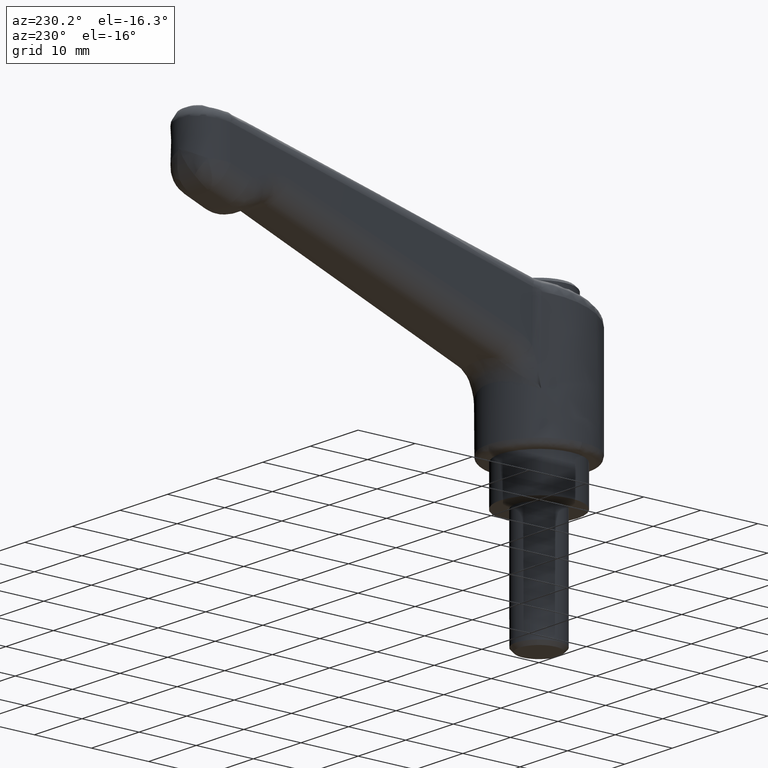
[diagram: clean part render]
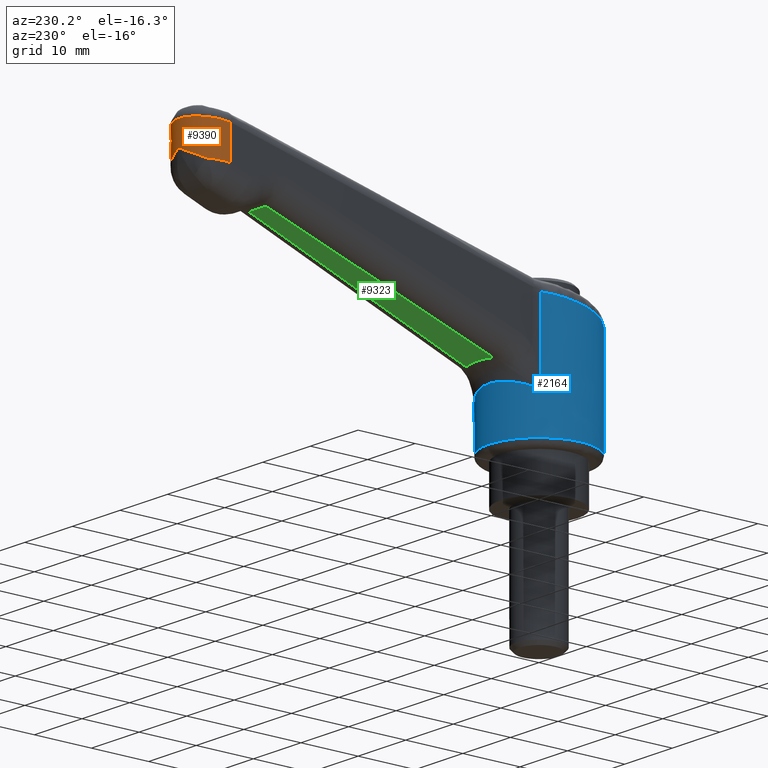
[diagram: same view with three faces highlighted in distinct colors, each labeled with its STEP entity id]
A machine part, auxiliary view with three faces highlighted in distinct colors.
Their STEP definitions:

[orange] entity #9390 — the highlighted face is a freeform B-spline surface patch.
#2426=CARTESIAN_POINT('',(63.0,-0.000003090441989,38.852661000000047));
#2427=VERTEX_POINT('',#2426);
#2428=CARTESIAN_POINT('',(61.207488032759898,3.835622089330110,36.906399749050749));
#2429=VERTEX_POINT('',#2428);
#2430=CARTESIAN_POINT('',(63.0,-0.000003090441989,38.852661000000047));
#2431=CARTESIAN_POINT('',(63.000000000000007,0.022154095709336,38.841806236726917));
#2432=CARTESIAN_POINT('',(62.999849475468537,0.044860566697618,38.830682387117371));
#2433=CARTESIAN_POINT('',(62.999242202799287,0.089913108462698,38.808610738087012));
#2434=CARTESIAN_POINT('',(62.997875025916592,0.157449981541540,38.775523056988810));
#2435=CARTESIAN_POINT('',(62.995143318839702,0.224860532540797,38.742492742380783));
#2436=CARTESIAN_POINT('',(62.987868374339442,0.359511553234764,38.676503428311413));
#2437=CARTESIAN_POINT('',(62.980604263157083,0.449052242204507,38.632605594631549));
#2438=CARTESIAN_POINT('',(62.951587382307352,0.716977011931990,38.501157807982807));
#2439=CARTESIAN_POINT('',(62.922630324503331,0.894666002227800,38.413853392356110));
#2440=CARTESIAN_POINT('',(62.845109914647189,1.248048195397747,38.239700707090030));
#2441=CARTESIAN_POINT('',(62.796806093921759,1.422451403056319,38.153487240340262));
#2442=CARTESIAN_POINT('',(62.681468971969231,1.765378951283792,37.983163927833210));
#2443=CARTESIAN_POINT('',(62.614394507453547,1.934101017084293,37.898957711569501));
#2444=CARTESIAN_POINT('',(62.499268554195780,2.182869173231913,37.773953341782352));
#2445=CARTESIAN_POINT('',(62.458481901188037,2.265014318764381,37.732530837297261));
#2446=CARTESIAN_POINT('',(62.372664711248397,2.426551679232947,37.650744362647792));
#2447=CARTESIAN_POINT('',(62.327656358967651,2.505927905095067,37.610389234161048));
#2448=CARTESIAN_POINT('',(62.186414690137489,2.739911306948240,37.490873790711397));
#2449=CARTESIAN_POINT('',(62.083981823957359,2.890384855113461,37.413259678107202));
#2450=CARTESIAN_POINT('',(61.862592760003743,3.180189857256789,37.261914958032733));
#2451=CARTESIAN_POINT('',(61.743638094438822,3.319522840667724,37.188184933641892));
#2452=CARTESIAN_POINT('',(61.488660497436669,3.586544904924614,37.044481110829118));
#2453=CARTESIAN_POINT('',(61.352642956026052,3.714238310297315,36.974507356869402));
#2454=CARTESIAN_POINT('',(61.207488032759898,3.835622089330110,36.906399749050749));
#2455=B_SPLINE_CURVE_WITH_KNOTS('',3,(#2430,#2431,#2432,#2433,#2434,#2435,#2436,#2437,#2438,#2439,#2440,#2441,#2442,#2443,#2444,#2445,#2446,#2447,#2448,#2449,#2450,#2451,#2452,#2453,#2454),.UNSPECIFIED.,.F.,.U.,(4,2,1,2,2,2,2,2,2,2,2,2,4),(0.0,0.015625000000001,0.031250000000003,0.062500000000004,0.125000000000003,0.250000000000002,0.375000000000001,0.499999999999999,0.562499999999998,0.624999999999997,0.749999999999998,0.874999999999999,1.0),.UNSPECIFIED.);
#2456=EDGE_CURVE('',#2427,#2429,#2455,.T.);
#3052=CARTESIAN_POINT('',(61.207488032757297,-3.835628270216300,36.906399749050451));
#3053=VERTEX_POINT('',#3052);
#3178=CARTESIAN_POINT('',(61.207488032757297,-3.835628270216300,36.906399749050451));
#3179=CARTESIAN_POINT('',(61.352642956017426,-3.714244491189163,36.974507356865097));
#3180=CARTESIAN_POINT('',(61.488660497422273,-3.586551085822665,37.044481110821472));
#3181=CARTESIAN_POINT('',(61.743638094426792,-3.319529021565327,37.188184933634652));
#3182=CARTESIAN_POINT('',(61.862592759992822,-3.180196038154087,37.261914958025713));
#3183=CARTESIAN_POINT('',(62.083981823948513,-2.890391036010014,37.413259678100722));
#3184=CARTESIAN_POINT('',(62.186414690129588,-2.739917487844352,37.490873790705180));
#3185=CARTESIAN_POINT('',(62.327656358961072,-2.505934085990415,37.610389234155257));
#3186=CARTESIAN_POINT('',(62.372664711242237,-2.426557860128016,37.650744362642151));
#3187=CARTESIAN_POINT('',(62.458481901182687,-2.265020499658871,37.732530837291947));
#3188=CARTESIAN_POINT('',(62.499268554190849,-2.182875354126071,37.773953341777244));
#3189=CARTESIAN_POINT('',(62.614394507449738,-1.934107197977430,37.898957711564940));
#3190=CARTESIAN_POINT('',(62.681468971966098,-1.765385132176196,37.983163927829033));
#3191=CARTESIAN_POINT('',(62.796806093919741,-1.422457583947188,38.153487240336858));
#3192=CARTESIAN_POINT('',(62.845109914645633,-1.248054376287809,38.239700707087010));
#3193=CARTESIAN_POINT('',(62.922630324502599,-0.894672183116168,38.413853392353921));
#3194=CARTESIAN_POINT('',(62.951587382306869,-0.716983192819503,38.501157807981073));
#3195=CARTESIAN_POINT('',(62.980604263156863,-0.449058423090706,38.632605594630427));
#3196=CARTESIAN_POINT('',(62.987868374339300,-0.359517734120516,38.676503428310497));
#3197=CARTESIAN_POINT('',(62.995143318839617,-0.224866713425876,38.742492742380193));
#3198=CARTESIAN_POINT('',(62.997875025916613,-0.157456162426341,38.775523056988511));
#3199=CARTESIAN_POINT('',(62.999242202799287,-0.089919289347191,38.808610738086912));
#3200=CARTESIAN_POINT('',(62.999849475468523,-0.044866747581954,38.830682387117527));
#3201=CARTESIAN_POINT('',(62.999999999999993,-0.022160276593426,38.841806236726853));
#3202=CARTESIAN_POINT('',(63.0,-0.000003090441989,38.852661000000047));
#3203=B_SPLINE_CURVE_WITH_KNOTS('',3,(#3178,#3179,#3180,#3181,#3182,#3183,#3184,#3185,#3186,#3187,#3188,#3189,#3190,#3191,#3192,#3193,#3194,#3195,#3196,#3197,#3198,#3199,#3200,#3201,#3202),.UNSPECIFIED.,.F.,.U.,(4,2,2,2,2,2,2,2,2,2,1,2,4),(0.0,0.124999999999997,0.249999999999994,0.374999999999990,0.437499999999990,0.499999999999989,0.624999999999991,0.749999999999994,0.874999999999996,0.937499999999997,0.968749999999998,0.984374999999999,1.0),.UNSPECIFIED.);
#3204=EDGE_CURVE('',#3053,#2427,#3203,.T.);
#3868=CARTESIAN_POINT('',(58.143580295737003,-4.997941135143631,36.571850614768152));
#3869=VERTEX_POINT('',#3868);
#3966=CARTESIAN_POINT('',(58.143580295737003,-4.997941135143631,36.571850614768152));
#3967=CARTESIAN_POINT('',(58.699964986484723,-4.981957367892704,36.632603714231912));
#3968=CARTESIAN_POINT('',(59.253596768691779,-4.872242147358290,36.693060320810851));
#3969=CARTESIAN_POINT('',(59.774396348293749,-4.674563697303925,36.749919980496522));
#3970=CARTESIAN_POINT('',(60.293909003889127,-4.477373721420669,36.806639136879348));
#3971=CARTESIAN_POINT('',(60.780489223658293,-4.192674515705844,36.859799101515698));
#3972=CARTESIAN_POINT('',(61.207488032757297,-3.835628270216300,36.906399749050451));
#3973=B_SPLINE_CURVE_WITH_KNOTS('',3,(#3966,#3967,#3968,#3969,#3970,#3971,#3972),.UNSPECIFIED.,.F.,.U.,(4,3,4),(0.0,1.679759832855814,3.355368888063435),.UNSPECIFIED.);
#3974=EDGE_CURVE('',#3869,#3053,#3973,.T.);
#6068=CARTESIAN_POINT('',(58.143580295737003,4.997941135143631,36.571850595623957));
#6069=VERTEX_POINT('',#6068);
#6158=CARTESIAN_POINT('',(61.207488032759898,3.835622089330110,36.906399749050749));
#6159=CARTESIAN_POINT('',(59.877107373820692,4.948137437792715,36.761135020082399));
#6160=CARTESIAN_POINT('',(58.143580295737003,4.997941135143631,36.571850595623957));
#6168=(BOUNDED_CURVE()B_SPLINE_CURVE(2,(#6158,#6159,#6160),.UNSPECIFIED.,.F.,.U.)CURVE()GEOMETRIC_REPRESENTATION_ITEM()QUASI_UNIFORM_CURVE()RATIONAL_B_SPLINE_CURVE((1.0,0.944783034194802,1.0))REPRESENTATION_ITEM(''));
#6169=EDGE_CURVE('',#2429,#6069,#6168,.T.);
#6715=CARTESIAN_POINT('',(58.143580295737003,-4.997941135143631,42.228393305217850));
#6716=VERTEX_POINT('',#6715);
#8996=CARTESIAN_POINT('',(58.143580295737003,4.997941135143631,42.228393277722454));
#8997=VERTEX_POINT('',#8996);
#9028=CARTESIAN_POINT('',(58.143580295737003,4.997941135143631,42.228393277722454));
#9029=CARTESIAN_POINT('',(63.000000002130527,4.858426282842101,43.000005584085784));
#9030=CARTESIAN_POINT('',(63.000000002130527,2.070192E-009,43.000005597449722));
#9031=CARTESIAN_POINT('',(63.000000002130527,-4.858426278701716,43.000005610813659));
#9032=CARTESIAN_POINT('',(58.143580295737003,-4.997941135143631,42.228393305217850));
#9040=(BOUNDED_CURVE()B_SPLINE_CURVE(2,(#9028,#9029,#9030,#9031,#9032),.UNSPECIFIED.,.F.,.U.)B_SPLINE_CURVE_WITH_KNOTS((3,2,3),(0.0,0.500000000000000,1.0),.UNSPECIFIED.)CURVE()GEOMETRIC_REPRESENTATION_ITEM()RATIONAL_B_SPLINE_CURVE((1.0,0.717187583105457,1.0,0.717187583105457,1.0))REPRESENTATION_ITEM(''));
#9041=EDGE_CURVE('',#8997,#6716,#9040,.T.);
#9281=CARTESIAN_POINT('',(58.143580295737003,-4.997941135143631,36.571850614768152));
#9282=CARTESIAN_POINT('',(58.143580295737003,-4.997941135143631,42.228393305217850));
#9283=QUASI_UNIFORM_CURVE('',1,(#9281,#9282),.UNSPECIFIED.,.F.,.U.);
#9284=EDGE_CURVE('',#3869,#6716,#9283,.T.);
#9301=CARTESIAN_POINT('',(58.143580295737003,4.997941135143631,42.228393277722454));
#9302=CARTESIAN_POINT('',(58.143580295737003,4.997941135143631,36.571850595623957));
#9303=QUASI_UNIFORM_CURVE('',1,(#9301,#9302),.UNSPECIFIED.,.F.,.U.);
#9304=EDGE_CURVE('',#8997,#6069,#9303,.T.);
#9363=CARTESIAN_POINT('',(58.012700328513539,-4.999986960581535,43.160709472495363));
#9364=CARTESIAN_POINT('',(58.012700328513539,-4.999986960581535,36.407129123702170));
#9365=CARTESIAN_POINT('',(63.056508788158204,-4.987175314372143,43.160709472495370));
#9366=CARTESIAN_POINT('',(63.056508788158204,-4.987175314372143,36.407129123702163));
#9367=CARTESIAN_POINT('',(62.999682656206957,0.056329291216038,43.160709472495363));
#9368=CARTESIAN_POINT('',(62.999682656206957,0.056329291216038,36.407129123702170));
#9369=CARTESIAN_POINT('',(62.942856524255710,5.099833896804225,43.160709472495370));
#9370=CARTESIAN_POINT('',(62.942856524255710,5.099833896804225,36.407129123702163));
#9371=CARTESIAN_POINT('',(57.900039855126458,4.998997606641069,43.160709472495363));
#9372=CARTESIAN_POINT('',(57.900039855126458,4.998997606641069,36.407129123702170));
#9380=(BOUNDED_SURFACE()B_SPLINE_SURFACE(1,2,((#9363,#9365,#9367,#9369,#9371),(#9364,#9366,#9368,#9370,#9372)),.UNSPECIFIED.,.F.,.F.,.U.)B_SPLINE_SURFACE_WITH_KNOTS((2,2),(3,2,3),(0.0,6.753580348793193),(0.0,8.335437076108871,16.670874152217738),.UNSPECIFIED.)GEOMETRIC_REPRESENTATION_ITEM()RATIONAL_B_SPLINE_SURFACE(((1.0,0.704014724455968,1.0,0.704014724455968,1.0),(1.0,0.704014724455968,1.0,0.704014724455968,1.0)))REPRESENTATION_ITEM('')SURFACE());
#9381=ORIENTED_EDGE('',*,*,#3974,.T.);
#9382=ORIENTED_EDGE('',*,*,#3204,.T.);
#9383=ORIENTED_EDGE('',*,*,#2456,.T.);
#9384=ORIENTED_EDGE('',*,*,#6169,.T.);
#9385=ORIENTED_EDGE('',*,*,#9304,.F.);
#9386=ORIENTED_EDGE('',*,*,#9041,.T.);
#9387=ORIENTED_EDGE('',*,*,#9284,.F.);
#9388=EDGE_LOOP('',(#9381,#9382,#9383,#9384,#9385,#9386,#9387));
#9389=FACE_OUTER_BOUND('',#9388,.T.);
#9390=ADVANCED_FACE('',(#9389),#9380,.T.);

[blue] entity #2164 — the highlighted face is a freeform B-spline surface patch.
#1994=CARTESIAN_POINT('',(-6.837617370452366,5.463495745351474,28.456560204695990));
#1995=CARTESIAN_POINT('',(-6.772924329000883,5.540757201138594,28.456560204695990));
#1996=CARTESIAN_POINT('',(-6.383350655427817,6.006016346191522,28.456560204695986));
#1997=CARTESIAN_POINT('',(-6.015263553585919,6.354455474775229,28.456560204695990));
#1998=CARTESIAN_POINT('',(0.339191921189310,12.369719028361146,28.456560204695986));
#1999=CARTESIAN_POINT('',(6.354455474775229,6.015263553585919,28.456560204695990));
#2000=CARTESIAN_POINT('',(12.369719028361146,-0.339191921189310,28.456560204695986));
#2001=CARTESIAN_POINT('',(6.015263553585919,-6.354455474775229,28.456560204695990));
#2002=CARTESIAN_POINT('',(-0.339191921189310,-12.369719028361146,28.456560204695986));
#2003=CARTESIAN_POINT('',(-6.419670795502118,-5.946370836227737,28.456560204696004));
#2004=CARTESIAN_POINT('',(-6.484303002891311,-5.878094113116200,28.456560204695990));
#2005=CARTESIAN_POINT('',(-6.837617370452366,5.463495745351474,6.976085993760166));
#2006=CARTESIAN_POINT('',(-6.772924329000883,5.540757201138594,6.976085993760165));
#2007=CARTESIAN_POINT('',(-6.383350655427817,6.006016346191522,6.976085993760165));
#2008=CARTESIAN_POINT('',(-6.015263553585919,6.354455474775229,6.976085993760165));
#2009=CARTESIAN_POINT('',(0.339191921189310,12.369719028361146,6.976085993760167));
#2010=CARTESIAN_POINT('',(6.354455474775229,6.015263553585919,6.976085993760165));
#2011=CARTESIAN_POINT('',(12.369719028361146,-0.339191921189310,6.976085993760167));
#2012=CARTESIAN_POINT('',(6.015263553585919,-6.354455474775229,6.976085993760165));
#2013=CARTESIAN_POINT('',(-0.339191921189310,-12.369719028361146,6.976085993760167));
#2014=CARTESIAN_POINT('',(-6.419670795502118,-5.946370836227737,6.976085993760168));
#2015=CARTESIAN_POINT('',(-6.484303002891311,-5.878094113116200,6.976085993760164));
#2023=(BOUNDED_SURFACE()B_SPLINE_SURFACE(2,1,((#1994,#2005),(#1995,#2006),(#1996,#2007),(#1997,#2008),(#1998,#2009),(#1999,#2010),(#2000,#2011),(#2001,#2012),(#2002,#2013),(#2003,#2014),(#2004,#2015)),.UNSPECIFIED.,.F.,.F.,.U.)B_SPLINE_SURFACE_WITH_KNOTS((3,1,2,2,2,1,3),(2,2),(0.0,0.223261236944054,1.383059211588720,15.880533894647041,30.378008577705369,44.875483260763687,45.098766967414207),(0.0,21.480474210935839),.UNSPECIFIED.)GEOMETRIC_REPRESENTATION_ITEM()RATIONAL_B_SPLINE_SURFACE(((0.949308380528936,0.949308380528936),(0.953097249359798,0.953097249359798),(0.976568542494924,0.976568542494924),(1.0,1.0),(0.707106781186548,0.707106781186548),(1.0,1.0),(0.707106781186548,0.707106781186548),(1.0,1.0),(0.707106781186548,0.707106781186548),(1.004511012088601,1.004511012088601),(1.009022024177203,1.009022024177203)))REPRESENTATION_ITEM('')SURFACE());
#2024=CARTESIAN_POINT('',(-6.708743602364807,5.617406810773925,25.476228958721020));
#2025=VERTEX_POINT('',#2024);
#2026=CARTESIAN_POINT('',(5.378522906579990,6.901738284185690,27.945424589920599));
#2027=VERTEX_POINT('',#2026);
#2028=CARTESIAN_POINT('',(-6.708743602364807,5.617406810773926,25.476228958721020));
#2029=CARTESIAN_POINT('',(-6.576226125331398,5.775669476486011,25.503299725736429));
#2030=CARTESIAN_POINT('',(-6.436393221341032,5.927507258559474,25.531864893499829));
#2031=CARTESIAN_POINT('',(-0.977537447306346,11.855014517118940,26.647003938257686));
#2032=CARTESIAN_POINT('',(5.378522906579985,6.901738284185689,27.945424589920599));
#2040=(BOUNDED_CURVE()B_SPLINE_CURVE(2,(#2028,#2029,#2030,#2031,#2032),.UNSPECIFIED.,.F.,.U.)B_SPLINE_CURVE_WITH_KNOTS((3,2,3),(0.655164718706690,0.666666666666667,1.0),.UNSPECIFIED.)CURVE()GEOMETRIC_REPRESENTATION_ITEM()RATIONAL_B_SPLINE_CURVE((0.982382114092281,0.990876233793834,1.0,0.735587796724693,1.0))REPRESENTATION_ITEM(''));
#2041=EDGE_CURVE('',#2025,#2027,#2040,.T.);
#2042=ORIENTED_EDGE('',*,*,#2041,.T.);
#2043=CARTESIAN_POINT('',(5.378522906579990,6.901738284185690,14.350094705642800));
#2044=VERTEX_POINT('',#2043);
#2045=CARTESIAN_POINT('',(5.378522906579990,6.901738284185690,27.945424589920599));
#2046=CARTESIAN_POINT('',(5.378522906579990,6.901738284185690,14.350094705642800));
#2047=QUASI_UNIFORM_CURVE('',1,(#2045,#2046),.UNSPECIFIED.,.F.,.U.);
#2048=EDGE_CURVE('',#2027,#2044,#2047,.T.);
#2049=ORIENTED_EDGE('',*,*,#2048,.T.);
#2050=CARTESIAN_POINT('',(5.378522906579990,-6.901738284185690,14.350094705642780));
#2051=VERTEX_POINT('',#2050);
#2052=CARTESIAN_POINT('',(5.378522906579980,6.901738284185691,14.350094705642780));
#2053=CARTESIAN_POINT('',(8.749999999999998,4.274347034430589,15.997936797323650));
#2054=CARTESIAN_POINT('',(8.749999999999998,1.071531E-015,15.997936797323639));
#2055=CARTESIAN_POINT('',(8.749999999999998,-4.274347034430584,15.997936797323650));
#2056=CARTESIAN_POINT('',(5.378522906579985,-6.901738284185687,14.350094705642791));
#2064=(BOUNDED_CURVE()B_SPLINE_CURVE(2,(#2052,#2053,#2054,#2055,#2056),.UNSPECIFIED.,.F.,.U.)B_SPLINE_CURVE_WITH_KNOTS((3,2,3),(0.0,0.500000000000000,1.0),.UNSPECIFIED.)CURVE()GEOMETRIC_REPRESENTATION_ITEM()RATIONAL_B_SPLINE_CURVE((1.0,0.898523325290048,1.0,0.898523325290048,1.0))REPRESENTATION_ITEM(''));
#2065=EDGE_CURVE('',#2044,#2051,#2064,.T.);
#2066=ORIENTED_EDGE('',*,*,#2065,.T.);
#2067=CARTESIAN_POINT('',(5.378522906579990,-6.901738284185690,27.945424589920599));
#2068=VERTEX_POINT('',#2067);
#2069=CARTESIAN_POINT('',(5.378522906579990,-6.901738284185690,14.350094705642780));
#2070=CARTESIAN_POINT('',(5.378522906579990,-6.901738284185690,27.945424589920599));
#2071=QUASI_UNIFORM_CURVE('',1,(#2069,#2070),.UNSPECIFIED.,.F.,.U.);
#2072=EDGE_CURVE('',#2051,#2068,#2071,.T.);
#2073=ORIENTED_EDGE('',*,*,#2072,.T.);
#2074=CARTESIAN_POINT('',(-6.354468670888409,-6.015249613301949,25.548607935730661));
#2075=VERTEX_POINT('',#2074);
#2076=CARTESIAN_POINT('',(5.378522906579990,-6.901738284185690,27.945424589920599));
#2077=CARTESIAN_POINT('',(-0.890588192643557,-11.787254336989223,26.664769723286891));
#2078=CARTESIAN_POINT('',(-6.354468670888409,-6.015249613301950,25.548607935730665));
#2086=(BOUNDED_CURVE()B_SPLINE_CURVE(2,(#2076,#2077,#2078),.UNSPECIFIED.,.F.,.U.)B_SPLINE_CURVE_WITH_KNOTS((3,3),(0.0,0.329966926407927),.UNSPECIFIED.)CURVE()GEOMETRIC_REPRESENTATION_ITEM()RATIONAL_B_SPLINE_CURVE((1.0,0.738258153941497,0.994713222620560))REPRESENTATION_ITEM(''));
#2087=EDGE_CURVE('',#2068,#2075,#2086,.T.);
#2088=ORIENTED_EDGE('',*,*,#2087,.T.);
#2089=CARTESIAN_POINT('',(-6.354455691111973,-6.015263325050245,7.499999999419432));
#2090=VERTEX_POINT('',#2089);
#2091=CARTESIAN_POINT('',(-6.354468670888409,-6.015249613301949,25.548607935730661));
#2092=CARTESIAN_POINT('',(-6.354455691111973,-6.015263325050245,7.499999999419432));
#2093=QUASI_UNIFORM_CURVE('',1,(#2091,#2092),.UNSPECIFIED.,.F.,.U.);
#2094=EDGE_CURVE('',#2075,#2090,#2093,.T.);
#2095=ORIENTED_EDGE('',*,*,#2094,.T.);
#2096=CARTESIAN_POINT('',(0.109924186482552,-8.749309496938952,7.500000000000000));
#2097=VERTEX_POINT('',#2096);
#2098=CARTESIAN_POINT('',(-6.354455691111973,-6.015263325050245,7.499999999419432));
#2099=CARTESIAN_POINT('',(-6.005385424907768,-6.384056217546252,7.499999999464645));
#2100=CARTESIAN_POINT('',(-5.158107125500195,-7.135869410550218,7.499999999565321));
#2101=CARTESIAN_POINT('',(-3.838082051618821,-7.913443745662154,7.499999999697611));
#2102=CARTESIAN_POINT('',(-2.584588647148453,-8.382577357928362,7.499999999806416));
#2103=CARTESIAN_POINT('',(-1.339182446605865,-8.681687922569573,7.499999999903914));
#2104=CARTESIAN_POINT('',(-0.454259357696986,-8.756477004808964,7.499999999964839));
#2105=CARTESIAN_POINT('',(0.109924186482552,-8.749309496938952,7.500000000000000));
#2106=B_SPLINE_CURVE_WITH_KNOTS('',3,(#2098,#2099,#2100,#2101,#2102,#2103,#2104,#2105),.UNSPECIFIED.,.F.,.U.,(4,1,1,1,1,4),(0.000000014360932,1.523399618069728,3.385342734791933,4.570201208841111,5.529381409460124,7.222048787000545),.UNSPECIFIED.);
#2107=EDGE_CURVE('',#2090,#2097,#2106,.T.);
#2108=ORIENTED_EDGE('',*,*,#2107,.T.);
#2109=CARTESIAN_POINT('',(8.750000000000000,0.0,7.500000000000000));
#2110=VERTEX_POINT('',#2109);
#2111=CARTESIAN_POINT('',(0.109924186482552,-8.749309496938952,7.500000000000000));
#2112=CARTESIAN_POINT('',(0.500462932391230,-8.744414305024607,7.500000000024444));
#2113=CARTESIAN_POINT('',(1.316360323982986,-8.679394279581059,7.500000000072084));
#2114=CARTESIAN_POINT('',(2.428263300452784,-8.431310448305535,7.500000000127060));
#2115=CARTESIAN_POINT('',(3.598542860872384,-8.007652565031078,7.500000000174694));
#2116=CARTESIAN_POINT('',(4.921076909446849,-7.306890760238236,7.500000000214686));
#2117=CARTESIAN_POINT('',(6.246293125248620,-6.217151036103173,7.500000000230487));
#2118=CARTESIAN_POINT('',(7.361148347007856,-4.825988094586750,7.500000000214008));
#2119=CARTESIAN_POINT('',(8.179222595139455,-3.281111302173089,7.500000000169189));
#2120=CARTESIAN_POINT('',(8.652996792974882,-1.633306883580374,7.500000000096081));
#2121=CARTESIAN_POINT('',(8.750024028563693,-0.497085897431986,7.500000000031118));
#2122=CARTESIAN_POINT('',(8.750000000000000,0.0,7.500000000000000));
#2123=B_SPLINE_CURVE_WITH_KNOTS('',3,(#2111,#2112,#2113,#2114,#2115,#2116,#2117,#2118,#2119,#2120,#2121,#2122),.UNSPECIFIED.,.F.,.U.,(4,1,1,1,1,1,1,1,1,4),(0.000000018810896,1.171716126376941,2.449963464574893,3.408656718093200,4.899949521726999,6.923832622680145,8.521635233887459,10.225969436240151,12.143353316050590,13.634624969384131),.UNSPECIFIED.);
#2124=EDGE_CURVE('',#2097,#2110,#2123,.T.);
#2125=ORIENTED_EDGE('',*,*,#2124,.T.);
#2126=CARTESIAN_POINT('',(-0.219888335201908,8.747236656227045,7.499999998906215));
#2127=VERTEX_POINT('',#2126);
#2128=CARTESIAN_POINT('',(8.750000000000000,0.0,7.500000000000000));
#2129=CARTESIAN_POINT('',(8.750136219971379,0.654593032588961,7.500000000056112));
#2130=CARTESIAN_POINT('',(8.639274069223736,1.636394711800720,7.500000000117407));
#2131=CARTESIAN_POINT('',(8.240927386025781,3.018860923861914,7.500000000153953));
#2132=CARTESIAN_POINT('',(7.741394933114938,4.154005486738609,7.500000000148574));
#2133=CARTESIAN_POINT('',(6.953559004586449,5.382069888327997,7.500000000091861));
#2134=CARTESIAN_POINT('',(6.052796703946791,6.364866425124197,7.499999999990941));
#2135=CARTESIAN_POINT('',(4.933480936538177,7.268767730444688,7.499999999838333));
#2136=CARTESIAN_POINT('',(3.875363990775721,7.883883166621383,7.499999999673946));
#2137=CARTESIAN_POINT('',(2.519054072109877,8.415990560386831,7.499999999440452));
#2138=CARTESIAN_POINT('',(1.217979961717936,8.708432717488950,7.499999999198264));
#2139=CARTESIAN_POINT('',(0.216352883440480,8.758217321089745,7.499999998996964));
#2140=CARTESIAN_POINT('',(-0.219888335201908,8.747236656227045,7.499999998906215));
#2141=B_SPLINE_CURVE_WITH_KNOTS('',3,(#2128,#2129,#2130,#2131,#2132,#2133,#2134,#2135,#2136,#2137,#2138,#2139,#2140),.UNSPECIFIED.,.F.,.U.,(4,1,1,1,1,1,1,1,1,1,4),(0.000000052056834,1.963735858222018,2.945612167866052,4.309330600425577,5.673058418846340,7.309479633405362,8.291344755927042,9.982365179633337,10.964237781332811,12.655258205039940,13.964401957931949),.UNSPECIFIED.);
#2142=EDGE_CURVE('',#2110,#2127,#2141,.T.);
#2143=ORIENTED_EDGE('',*,*,#2142,.T.);
#2144=CARTESIAN_POINT('',(-6.708743613356516,5.617406797635236,7.499999999738256));
#2145=VERTEX_POINT('',#2144);
#2146=CARTESIAN_POINT('',(-0.219888335201908,8.747236656227045,7.499999998906215));
#2147=CARTESIAN_POINT('',(-0.838456053124952,8.731792320478130,7.499999998985555));
#2148=CARTESIAN_POINT('',(-1.860150085556544,8.596789496360902,7.499999999116488));
#2149=CARTESIAN_POINT('',(-3.116587811623839,8.198581945891442,7.499999999277675));
#2150=CARTESIAN_POINT('',(-4.315341393667648,7.654400413705740,7.499999999431341));
#2151=CARTESIAN_POINT('',(-5.533572411216147,6.852707855770933,7.499999999587571));
#2152=CARTESIAN_POINT('',(-6.361198288747453,6.032537268943647,7.499999999693695));
#2153=CARTESIAN_POINT('',(-6.708743613356516,5.617406797635236,7.499999999738256));
#2154=B_SPLINE_CURVE_WITH_KNOTS('',3,(#2146,#2147,#2148,#2149,#2150,#2151,#2152,#2153),.UNSPECIFIED.,.F.,.U.,(4,1,1,1,1,4),(0.000000015500474,1.856258349960323,3.074431891566105,3.944538642919564,5.800807723581035,7.425031599301982),.UNSPECIFIED.);
#2155=EDGE_CURVE('',#2127,#2145,#2154,.T.);
#2156=ORIENTED_EDGE('',*,*,#2155,.T.);
#2157=CARTESIAN_POINT('',(-6.708743602364807,5.617406810773925,25.476228958721020));
#2158=CARTESIAN_POINT('',(-6.708743613356516,5.617406797635236,7.499999999738256));
#2159=QUASI_UNIFORM_CURVE('',1,(#2157,#2158),.UNSPECIFIED.,.F.,.U.);
#2160=EDGE_CURVE('',#2025,#2145,#2159,.T.);
#2161=ORIENTED_EDGE('',*,*,#2160,.F.);
#2162=EDGE_LOOP('',(#2042,#2049,#2066,#2073,#2088,#2095,#2108,#2125,#2143,#2156,#2161));
#2163=FACE_OUTER_BOUND('',#2162,.T.);
#2164=ADVANCED_FACE('',(#2163),#2023,.T.);

[green] entity #9323 — the highlighted face is a freeform B-spline surface patch.
#3372=CARTESIAN_POINT('',(10.359522173690999,-2.903622422313825,18.684377667119900));
#3373=VERTEX_POINT('',#3372);
#3432=CARTESIAN_POINT('',(49.300344071999113,-1.784934140387715,32.857667846055499));
#3433=VERTEX_POINT('',#3432);
#3455=CARTESIAN_POINT('',(49.300344071999113,-1.784934140387715,32.857667846055499));
#3456=CARTESIAN_POINT('',(10.359522173690999,-2.903622422313825,18.684377667119900));
#3457=QUASI_UNIFORM_CURVE('',1,(#3455,#3456),.UNSPECIFIED.,.F.,.U.);
#3458=EDGE_CURVE('',#3433,#3373,#3457,.T.);
#5592=CARTESIAN_POINT('',(10.359522173690999,2.903622422313820,18.684377667119900));
#5593=VERTEX_POINT('',#5592);
#5653=CARTESIAN_POINT('',(49.300344071999113,1.784934140387715,32.857667846055499));
#5654=VERTEX_POINT('',#5653);
#5668=CARTESIAN_POINT('',(10.359522173690999,2.903622422313820,18.684377667119900));
#5669=CARTESIAN_POINT('',(49.300344071999113,1.784934140387715,32.857667846055499));
#5670=QUASI_UNIFORM_CURVE('',1,(#5668,#5669),.UNSPECIFIED.,.F.,.U.);
#5671=EDGE_CURVE('',#5593,#5654,#5670,.T.);
#9095=CARTESIAN_POINT('',(49.300344071999113,1.784934140387715,32.857667846055499));
#9096=CARTESIAN_POINT('',(49.300344071999113,-1.784934140387715,32.857667846055499));
#9097=QUASI_UNIFORM_CURVE('',1,(#9095,#9096),.UNSPECIFIED.,.F.,.U.);
#9098=EDGE_CURVE('',#5654,#3433,#9097,.T.);
#9230=CARTESIAN_POINT('',(10.359522173690991,-2.903622422313853,18.684377667119922));
#9231=CARTESIAN_POINT('',(11.100022149230586,-1.864828E-014,18.953897428624320));
#9232=CARTESIAN_POINT('',(10.359522173690999,2.903622422313819,18.684377667119929));
#9240=(BOUNDED_CURVE()B_SPLINE_CURVE(2,(#9230,#9231,#9232),.UNSPECIFIED.,.F.,.U.)CURVE()GEOMETRIC_REPRESENTATION_ITEM()QUASI_UNIFORM_CURVE()RATIONAL_B_SPLINE_CURVE((1.0,0.968985699697980,1.0))REPRESENTATION_ITEM(''));
#9241=EDGE_CURVE('',#3373,#5593,#9240,.T.);
#9312=CARTESIAN_POINT('',(8.414427968920789,-3.193694291047408,17.976421767740849));
#9313=CARTESIAN_POINT('',(51.245436187820879,-3.193694291047408,33.565622985119951));
#9314=CARTESIAN_POINT('',(8.414427968920789,3.193694446809848,17.976421767740849));
#9315=CARTESIAN_POINT('',(51.245436187820879,3.193694446809848,33.565622985119951));
#9316=B_SPLINE_SURFACE_WITH_KNOTS('',1,1,((#9312,#9314),(#9313,#9315)),.UNSPECIFIED.,.F.,.F.,.U.,(2,2),(2,2),(0.0,45.579803198822837),(0.0,6.387388737857256),.UNSPECIFIED.);
#9317=ORIENTED_EDGE('',*,*,#9098,.T.);
#9318=ORIENTED_EDGE('',*,*,#3458,.T.);
#9319=ORIENTED_EDGE('',*,*,#9241,.T.);
#9320=ORIENTED_EDGE('',*,*,#5671,.T.);
#9321=EDGE_LOOP('',(#9317,#9318,#9319,#9320));
#9322=FACE_OUTER_BOUND('',#9321,.T.);
#9323=ADVANCED_FACE('',(#9322),#9316,.F.);